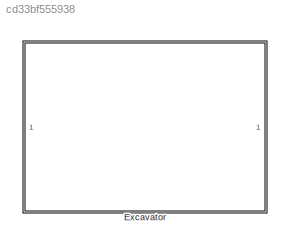
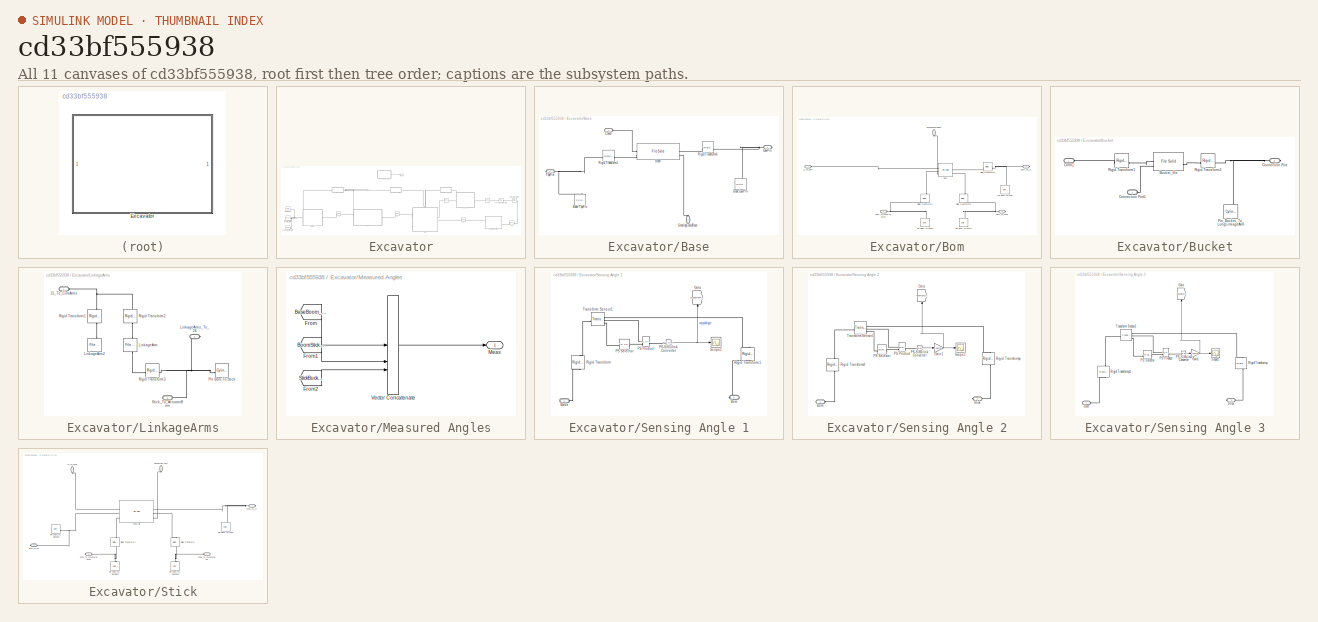
[diagram: thumbnail index - all 11 canvases of the model, root first then tree order]
MODEL slx_cd33bf555938
KIND model
CONFIG AbsTol = auto
CONFIG EnableMultiTasking = off
CONFIG FixedStep = auto
CONFIG MaxStep = auto
CONFIG MinStep = auto
CONFIG RelTol = 1e-3
CONFIG SampleTimeConstraint = Unconstrained
CONFIG SolverName = VariableStepAuto
CONFIG StartTime = 0.0
CONFIG StopTime = 10.0
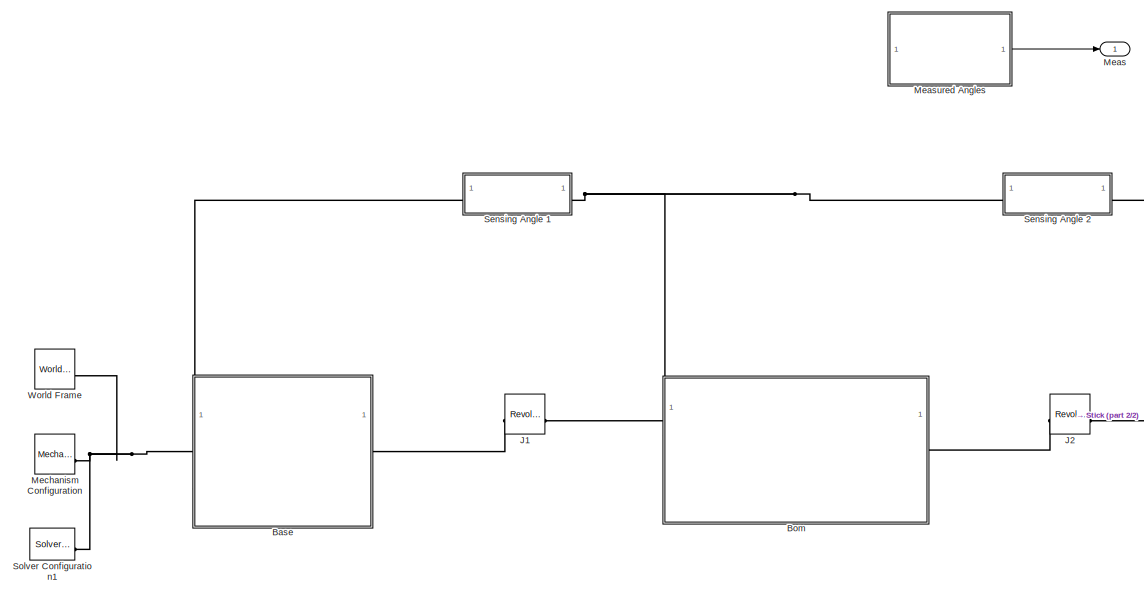
[diagram: Excavator - part 1/2, left side, full height]
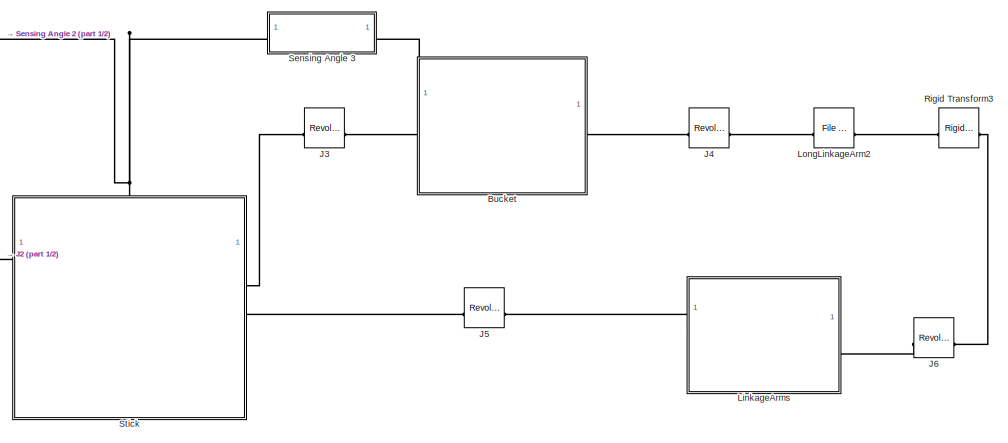
[diagram: Excavator - part 2/2, middle right region]
BLOCK [SubSystem] Excavator
BLOCK [SubSystem] Excavator/Base
  PortSchema = {"entries":[{"content":{"sides":[{"content":{"connectorIds":["LConn1"]},"type":"ConnectorPlacement.EquallySpacedRectSide","uuid":"40ecd481-0f87-4ac6-81e7-411d2e7a87dc"},{"content":{"connectorIds":["RConn1","RConn2"],"side":"RIGHT"},"type":"ConnectorPlacement.EquallySpacedRectSide","uuid":"4ae56660-704d-4a11-a2e7-42dc450a906f"},{"content":{"connectorIds":["LConn2"],"side":"TOP"},"type":"ConnectorPl...<+262ch>
BLOCK [Reference] Excavator/Base/Base  REF=sm_lib/Body Elements/File Solid
  SourceBlock = sm_lib/Body Elements/File Solid
  SourceType = File Solid
BLOCK [Reference] Excavator/Base/Base LowPin  REF=sm_lib/Body Elements/Cylindrical Solid
  NameLocation = left
  SourceBlock = sm_lib/Body Elements/Cylindrical Solid
  SourceType = Cylindrical Solid
BLOCK [Reference] Excavator/Base/Base TopPin  REF=sm_lib/Body Elements/Cylindrical Solid
  NameLocation = left
  SourceBlock = sm_lib/Body Elements/Cylindrical Solid
  SourceType = Cylindrical Solid
BLOCK [PMIOPort] Excavator/Base/Conn1
  Side = Left
BLOCK [PMIOPort] Excavator/Base/LowPin
  NameLocation = top
  Port = 4
  Side = Right
BLOCK [Reference] Excavator/Base/Rigid Transform1  REF=sm_lib/Frames and
Transforms/Rigid
Transform
  SourceBlock = sm_lib/Frames and\nTransforms/Rigid\nTransform
  SourceType = Rigid\nTransform
BLOCK [Reference] Excavator/Base/Rigid Transform6  REF=sm_lib/Frames and
Transforms/Rigid
Transform
  SourceBlock = sm_lib/Frames and\nTransforms/Rigid\nTransform
  SourceType = Rigid\nTransform
BLOCK [PMIOPort] Excavator/Base/SensingCoordBase
  NameLocation = right
  Port = 2
  Side = Left
BLOCK [PMIOPort] Excavator/Base/TopPin
  NameLocation = top
  Port = 3
  Side = Right
BLOCK [SubSystem] Excavator/Bom
  PortSchema = {"entries":[{"content":{"sides":[{"content":{"connectorIds":["LConn1","LConn2"]},"type":"ConnectorPlacement.EquallySpacedRectSide","uuid":"7ad98941-c155-4b77-821c-441aa02f495c"},{"content":{"connectorIds":["RConn1","RConn2"],"side":"RIGHT"},"type":"ConnectorPlacement.EquallySpacedRectSide","uuid":"f5fb3b40-b535-47bd-a749-2c1f436a2cdb"},{"content":{"connectorIds":["LConn3"],"side":"TOP"},"type":"Co...<+271ch>
BLOCK [Reference] Excavator/Bom/Bom  REF=sm_lib/Body Elements/File Solid
  SourceBlock = sm_lib/Body Elements/File Solid
  SourceType = File Solid
BLOCK [PMIOPort] Excavator/Bom/Bom_To_J2
  NameLocation = top
  Port = 4
  Side = Right
BLOCK [PMIOPort] Excavator/Bom/Bom_To_LowerActuator
  Port = 2
  Side = Left
BLOCK [PMIOPort] Excavator/Bom/Bom_To_Stick
  Port = 5
  Side = Right
BLOCK [PMIOPort] Excavator/Bom/J1_To_Bom
  Side = Left
BLOCK [Reference] Excavator/Bom/Pin Bom-To-Stick  REF=sm_lib/Body Elements/Cylindrical Solid
  NameLocation = right
  SourceBlock = sm_lib/Body Elements/Cylindrical Solid
  SourceType = Cylindrical Solid
BLOCK [Reference] Excavator/Bom/Pin Bom-To-Stick1  REF=sm_lib/Body Elements/Cylindrical Solid
  NameLocation = right
  SourceBlock = sm_lib/Body Elements/Cylindrical Solid
  SourceType = Cylindrical Solid
BLOCK [Reference] Excavator/Bom/Pin Bom-To-Stick2  REF=sm_lib/Body Elements/Cylindrical Solid
  NameLocation = right
  SourceBlock = sm_lib/Body Elements/Cylindrical Solid
  SourceType = Cylindrical Solid
BLOCK [Reference] Excavator/Bom/Rigid Transform1  REF=sm_lib/Frames and
Transforms/Rigid
Transform
  SourceBlock = sm_lib/Frames and\nTransforms/Rigid\nTransform
  SourceType = Rigid\nTransform
BLOCK [Reference] Excavator/Bom/Rigid Transform2  REF=sm_lib/Frames and
Transforms/Rigid
Transform
  NameLocation = top
  SourceBlock = sm_lib/Frames and\nTransforms/Rigid\nTransform
  SourceType = Rigid\nTransform
BLOCK [Reference] Excavator/Bom/Rigid Transform3  REF=sm_lib/Frames and
Transforms/Rigid
Transform
  NameLocation = left
  SourceBlock = sm_lib/Frames and\nTransforms/Rigid\nTransform
  SourceType = Rigid\nTransform
BLOCK [PMIOPort] Excavator/Bom/SensingCoordBom
  NameLocation = left
  Port = 3
  Side = Left
BLOCK [SubSystem] Excavator/Bucket
  PortSchema = {"entries":[{"content":{"sides":[{"content":{"connectorIds":["LConn1"]},"type":"ConnectorPlacement.EquallySpacedRectSide","uuid":"5de28302-4101-44f3-9c23-279c450fdd15"},{"content":{"connectorIds":["RConn1"],"side":"RIGHT"},"type":"ConnectorPlacement.EquallySpacedRectSide","uuid":"b0db8830-510e-47ef-9140-b2643c0c8376"},{"content":{"connectorIds":["LConn2"],"side":"TOP"},"type":"ConnectorPlacement.E...<+253ch>
BLOCK [Reference] Excavator/Bucket/Bucket_file  REF=sm_lib/Body Elements/File Solid
  SourceBlock = sm_lib/Body Elements/File Solid
  SourceType = File Solid
BLOCK [PMIOPort] Excavator/Bucket/Conn1
  Side = Left
BLOCK [PMIOPort] Excavator/Bucket/Connection Port
  NameLocation = top
  Port = 3
  Side = Right
BLOCK [PMIOPort] Excavator/Bucket/Connection Port1
  Port = 2
  Side = Left
BLOCK [Reference] Excavator/Bucket/Pin_Bucket_To_LongLinkageArm  REF=sm_lib/Body Elements/Cylindrical Solid
  NameLocation = right
  SourceBlock = sm_lib/Body Elements/Cylindrical Solid
  SourceType = Cylindrical Solid
BLOCK [Reference] Excavator/Bucket/Rigid Transform1  REF=sm_lib/Frames and
Transforms/Rigid
Transform
  SourceBlock = sm_lib/Frames and\nTransforms/Rigid\nTransform
  SourceType = Rigid\nTransform
BLOCK [Reference] Excavator/Bucket/Rigid Transform2  REF=sm_lib/Frames and
Transforms/Rigid
Transform
  SourceBlock = sm_lib/Frames and\nTransforms/Rigid\nTransform
  SourceType = Rigid\nTransform
BLOCK [Reference] Excavator/J1  REF=sm_lib/Joints/Revolute Joint
  SourceBlock = sm_lib/Joints/Revolute Joint
  SourceType = Revolute Joint
BLOCK [Reference] Excavator/J2  REF=sm_lib/Joints/Revolute Joint
  SourceBlock = sm_lib/Joints/Revolute Joint
  SourceType = Revolute Joint
BLOCK [Reference] Excavator/J3  REF=sm_lib/Joints/Revolute Joint
  SourceBlock = sm_lib/Joints/Revolute Joint
  SourceType = Revolute Joint
BLOCK [Reference] Excavator/J4  REF=sm_lib/Joints/Revolute Joint
  SourceBlock = sm_lib/Joints/Revolute Joint
  SourceType = Revolute Joint
BLOCK [Reference] Excavator/J5  REF=sm_lib/Joints/Revolute Joint
  SourceBlock = sm_lib/Joints/Revolute Joint
  SourceType = Revolute Joint
BLOCK [Reference] Excavator/J6  REF=sm_lib/Joints/Revolute Joint
  SourceBlock = sm_lib/Joints/Revolute Joint
  SourceType = Revolute Joint
BLOCK [SubSystem] Excavator/LinkageArms
BLOCK [PMIOPort] Excavator/LinkageArms/J5_To_LinkArms
  Side = Left
BLOCK [Reference] Excavator/LinkageArms/LinkageArm  REF=sm_lib/Body Elements/File Solid
  NameLocation = left
  SourceBlock = sm_lib/Body Elements/File Solid
  SourceType = File Solid
BLOCK [Reference] Excavator/LinkageArms/LinkageArm2  REF=sm_lib/Body Elements/File Solid
  NameLocation = left
  SourceBlock = sm_lib/Body Elements/File Solid
  SourceType = File Solid
BLOCK [PMIOPort] Excavator/LinkageArms/LinkageArms_To_J6
  NameLocation = top
  Port = 2
  Side = Right
BLOCK [Reference] Excavator/LinkageArms/Pin Bom-To-Stick  REF=sm_lib/Body Elements/Cylindrical Solid
  SourceBlock = sm_lib/Body Elements/Cylindrical Solid
  SourceType = Cylindrical Solid
BLOCK [Reference] Excavator/LinkageArms/Rigid Transform1  REF=sm_lib/Frames and
Transforms/Rigid
Transform
  NameLocation = left
  SourceBlock = sm_lib/Frames and\nTransforms/Rigid\nTransform
  SourceType = Rigid\nTransform
BLOCK [Reference] Excavator/LinkageArms/Rigid Transform2  REF=sm_lib/Frames and
Transforms/Rigid
Transform
  NameLocation = left
  SourceBlock = sm_lib/Frames and\nTransforms/Rigid\nTransform
  SourceType = Rigid\nTransform
BLOCK [Reference] Excavator/LinkageArms/Rigid Transform3  REF=sm_lib/Frames and
Transforms/Rigid
Transform
  SourceBlock = sm_lib/Frames and\nTransforms/Rigid\nTransform
  SourceType = Rigid\nTransform
BLOCK [PMIOPort] Excavator/LinkageArms/Stick_To_ActuatorBom
  Port = 3
  Side = Left
BLOCK [Reference] Excavator/LongLinkageArm2  REF=sm_lib/Body Elements/File Solid
  SourceBlock = sm_lib/Body Elements/File Solid
  SourceType = File Solid
BLOCK [Outport] Excavator/Meas
BLOCK [SubSystem] Excavator/Measured Angles
BLOCK [From] Excavator/Measured Angles/From
  GotoTag = BaseBoom_angle
  IconDisplay = Tag and signal name
  TagVisibility = global
BLOCK [From] Excavator/Measured Angles/From1
  GotoTag = BoomStick_angle
  TagVisibility = global
BLOCK [From] Excavator/Measured Angles/From2
  GotoTag = StickBucket_angle
  TagVisibility = global
BLOCK [Outport] Excavator/Measured Angles/Meas
BLOCK [Concatenate] Excavator/Measured Angles/Vector Concatenate
  NumInputs = 3
BLOCK [Reference] Excavator/Mechanism Configuration  REF=sm_lib/Utilities/Mechanism
Configuration
  SourceBlock = sm_lib/Utilities/Mechanism\nConfiguration
  SourceType = Mechanism\nConfiguration
BLOCK [Reference] Excavator/Rigid Transform3  REF=sm_lib/Frames and
Transforms/Rigid
Transform
  SourceBlock = sm_lib/Frames and\nTransforms/Rigid\nTransform
  SourceType = Rigid\nTransform
BLOCK [SubSystem] Excavator/Sensing Angle 1
BLOCK [PMIOPort] Excavator/Sensing Angle 1/Base
  Side = Left
BLOCK [PMIOPort] Excavator/Sensing Angle 1/Bom
  Port = 2
  Side = Right
BLOCK [Goto] Excavator/Sensing Angle 1/Goto
  GotoTag = BaseBoom_angle
  NameLocation = right
  TagVisibility = global
BLOCK [Reference] Excavator/Sensing Angle 1/PS Product  REF=fl_lib/Physical Signals/Functions/PS Product
  SourceBlock = fl_lib/Physical Signals/Functions/PS Product
  SourceType = PS Product
BLOCK [Reference] Excavator/Sensing Angle 1/PS Selector  REF=fl_lib/Physical Signals/Nonlinear Operators/PS Selector
  SourceBlock = fl_lib/Physical Signals/Nonlinear Operators/PS Selector
  SourceType = PS Selector
BLOCK [Reference] Excavator/Sensing Angle 1/PS-Simulink Converter  REF=nesl_utility/PS-Simulink
Converter
  SourceBlock = nesl_utility/PS-Simulink\nConverter
  SourceType = PS-Simulink\nConverter
BLOCK [Reference] Excavator/Sensing Angle 1/Rigid Transform  REF=sm_lib/Frames and
Transforms/Rigid
Transform
  NameLocation = right
  SourceBlock = sm_lib/Frames and\nTransforms/Rigid\nTransform
  SourceType = Rigid\nTransform
BLOCK [Reference] Excavator/Sensing Angle 1/Rigid Transform1  REF=sm_lib/Frames and
Transforms/Rigid
Transform
  NameLocation = right
  SourceBlock = sm_lib/Frames and\nTransforms/Rigid\nTransform
  SourceType = Rigid\nTransform
BLOCK [Scope] Excavator/Sensing Angle 1/Scope1
  Floating = off
  NumInputPorts = 1
  ScopeSpecificationString = Simulink.scopes.TimeScopeBlockCfg('CurrentConfiguration', extmgr.ConfigurationSet(extmgr.Configuration('Core','General UI',true),extmgr.Configuration('Core','Source UI',true),extmgr.Configuration('Sources','WiredSimulink',true,'DataLoggingVariableName','ScopeData1'),extmgr.Configuration('Visuals','Time Domain',true,'SerializedDisplays',{struct('MinYLimReal','15.99751','MaxYLimReal','32.86622','YLa...<+1517ch>
BLOCK [Reference] Excavator/Sensing Angle 1/Transform Sensor1  REF=sm_lib/Frames and
Transforms/Transform
Sensor
  SourceBlock = sm_lib/Frames and\nTransforms/Transform\nSensor
  SourceType = Transform\nSensor
BLOCK [SubSystem] Excavator/Sensing Angle 2
BLOCK [PMIOPort] Excavator/Sensing Angle 2/Bom
  Side = Left
BLOCK [Gain] Excavator/Sensing Angle 2/Gain1
  Gain = -180/pi
BLOCK [Goto] Excavator/Sensing Angle 2/Goto
  GotoTag = BoomStick_angle
  NameLocation = right
  TagVisibility = global
BLOCK [Reference] Excavator/Sensing Angle 2/PS Product  REF=fl_lib/Physical Signals/Functions/PS Product
  SourceBlock = fl_lib/Physical Signals/Functions/PS Product
  SourceType = PS Product
BLOCK [Reference] Excavator/Sensing Angle 2/PS Selector  REF=fl_lib/Physical Signals/Nonlinear Operators/PS Selector
  SourceBlock = fl_lib/Physical Signals/Nonlinear Operators/PS Selector
  SourceType = PS Selector
BLOCK [Reference] Excavator/Sensing Angle 2/PS-Simulink Converter  REF=nesl_utility/PS-Simulink
Converter
  SourceBlock = nesl_utility/PS-Simulink\nConverter
  SourceType = PS-Simulink\nConverter
BLOCK [Reference] Excavator/Sensing Angle 2/Rigid Transform2  REF=sm_lib/Frames and
Transforms/Rigid
Transform
  NameLocation = right
  SourceBlock = sm_lib/Frames and\nTransforms/Rigid\nTransform
  SourceType = Rigid\nTransform
BLOCK [Reference] Excavator/Sensing Angle 2/Rigid Transformp  REF=sm_lib/Frames and
Transforms/Rigid
Transform
  NameLocation = right
  SourceBlock = sm_lib/Frames and\nTransforms/Rigid\nTransform
  SourceType = Rigid\nTransform
BLOCK [Scope] Excavator/Sensing Angle 2/Scope1
  Floating = off
  NumInputPorts = 1
  ScopeSpecificationString = Simulink.scopes.TimeScopeBlockCfg('CurrentConfiguration', extmgr.ConfigurationSet(extmgr.Configuration('Core','General UI',true),extmgr.Configuration('Core','Source UI',true),extmgr.Configuration('Sources','WiredSimulink',true,'DataLoggingVariableName','ScopeData1'),extmgr.Configuration('Visuals','Time Domain',true,'SerializedDisplays',{struct('MinYLimReal','123.14080020700693','MaxYLimReal','123....<+1572ch>
BLOCK [PMIOPort] Excavator/Sensing Angle 2/Stick
  Port = 2
  Side = Right
BLOCK [Reference] Excavator/Sensing Angle 2/Transform Sensor1  REF=sm_lib/Frames and
Transforms/Transform
Sensor
  SourceBlock = sm_lib/Frames and\nTransforms/Transform\nSensor
  SourceType = Transform\nSensor
BLOCK [SubSystem] Excavator/Sensing Angle 3
BLOCK [PMIOPort] Excavator/Sensing Angle 3/Bom
  Side = Left
BLOCK [Gain] Excavator/Sensing Angle 3/Gain1
  Gain = -180/pi
BLOCK [Goto] Excavator/Sensing Angle 3/Goto
  GotoTag = StickBucket_angle
  NameLocation = right
  TagVisibility = global
BLOCK [Reference] Excavator/Sensing Angle 3/PS Product  REF=fl_lib/Physical Signals/Functions/PS Product
  SourceBlock = fl_lib/Physical Signals/Functions/PS Product
  SourceType = PS Product
BLOCK [Reference] Excavator/Sensing Angle 3/PS Selector  REF=fl_lib/Physical Signals/Nonlinear Operators/PS Selector
  SourceBlock = fl_lib/Physical Signals/Nonlinear Operators/PS Selector
  SourceType = PS Selector
BLOCK [Reference] Excavator/Sensing Angle 3/PS-Simulink Converter  REF=nesl_utility/PS-Simulink
Converter
  SourceBlock = nesl_utility/PS-Simulink\nConverter
  SourceType = PS-Simulink\nConverter
BLOCK [Reference] Excavator/Sensing Angle 3/Rigid Transformp  REF=sm_lib/Frames and
Transforms/Rigid
Transform
  NameLocation = right
  SourceBlock = sm_lib/Frames and\nTransforms/Rigid\nTransform
  SourceType = Rigid\nTransform
BLOCK [Reference] Excavator/Sensing Angle 3/Rigid Transformp1  REF=sm_lib/Frames and
Transforms/Rigid
Transform
  NameLocation = right
  SourceBlock = sm_lib/Frames and\nTransforms/Rigid\nTransform
  SourceType = Rigid\nTransform
BLOCK [Scope] Excavator/Sensing Angle 3/Scope1
  Floating = off
  NumInputPorts = 1
  ScopeSpecificationString = Simulink.scopes.TimeScopeBlockCfg('CurrentConfiguration', extmgr.ConfigurationSet(extmgr.Configuration('Core','General UI',true),extmgr.Configuration('Core','Source UI',true),extmgr.Configuration('Sources','WiredSimulink',true,'DataLoggingVariableName','ScopeData1'),extmgr.Configuration('Visuals','Time Domain',true,'SerializedDisplays',{struct('MinYLimReal','126.401347015','MaxYLimReal','126.40134...<+1532ch>
BLOCK [PMIOPort] Excavator/Sensing Angle 3/Stick
  Port = 2
  Side = Right
BLOCK [Reference] Excavator/Sensing Angle 3/Transform Sensor1  REF=sm_lib/Frames and
Transforms/Transform
Sensor
  SourceBlock = sm_lib/Frames and\nTransforms/Transform\nSensor
  SourceType = Transform\nSensor
BLOCK [Reference] Excavator/Solver Configuration1  REF=nesl_utility/Solver
Configuration
  SourceBlock = nesl_utility/Solver\nConfiguration
  SourceType = Solver\nConfiguration
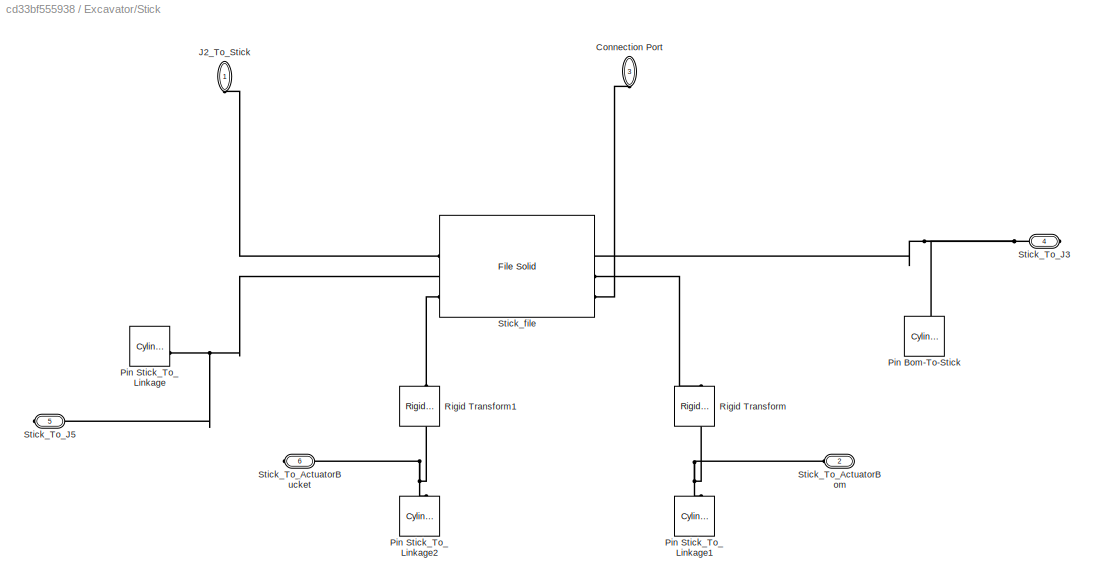
BLOCK [SubSystem] Excavator/Stick
  PortSchema = {"entries":[{"content":{"sides":[{"content":{"connectorIds":["LConn1","LConn2"]},"type":"ConnectorPlacement.EquallySpacedRectSide","uuid":"35d28eba-fa4f-4cd3-971b-9e32fe878e3c"},{"content":{"connectorIds":["RConn1","RConn2","RConn3"],"side":"RIGHT"},"type":"ConnectorPlacement.EquallySpacedRectSide","uuid":"fcb94bdd-c4dd-4816-bcf0-4e4658b36d25"},{"content":{"connectorIds":["LConn3"],"side":"TOP"},"...<+280ch>
BLOCK [PMIOPort] Excavator/Stick/Connection Port
  NameLocation = left
  Port = 3
  Side = Left
BLOCK [PMIOPort] Excavator/Stick/J2_To_Stick
  NameLocation = left
  Side = Left
BLOCK [Reference] Excavator/Stick/Pin Bom-To-Stick  REF=sm_lib/Body Elements/Cylindrical Solid
  NameLocation = right
  SourceBlock = sm_lib/Body Elements/Cylindrical Solid
  SourceType = Cylindrical Solid
BLOCK [Reference] Excavator/Stick/Pin Stick_To_Linkage  REF=sm_lib/Body Elements/Cylindrical Solid
  NameLocation = top
  SourceBlock = sm_lib/Body Elements/Cylindrical Solid
  SourceType = Cylindrical Solid
BLOCK [Reference] Excavator/Stick/Pin Stick_To_Linkage1  REF=sm_lib/Body Elements/Cylindrical Solid
  NameLocation = left
  SourceBlock = sm_lib/Body Elements/Cylindrical Solid
  SourceType = Cylindrical Solid
BLOCK [Reference] Excavator/Stick/Pin Stick_To_Linkage2  REF=sm_lib/Body Elements/Cylindrical Solid
  NameLocation = left
  SourceBlock = sm_lib/Body Elements/Cylindrical Solid
  SourceType = Cylindrical Solid
BLOCK [Reference] Excavator/Stick/Rigid Transform  REF=sm_lib/Frames and
Transforms/Rigid
Transform
  NameLocation = left
  SourceBlock = sm_lib/Frames and\nTransforms/Rigid\nTransform
  SourceType = Rigid\nTransform
BLOCK [Reference] Excavator/Stick/Rigid Transform1  REF=sm_lib/Frames and
Transforms/Rigid
Transform
  NameLocation = left
  SourceBlock = sm_lib/Frames and\nTransforms/Rigid\nTransform
  SourceType = Rigid\nTransform
BLOCK [PMIOPort] Excavator/Stick/Stick_To_ActuatorBom
  Port = 2
  Side = Left
BLOCK [PMIOPort] Excavator/Stick/Stick_To_ActuatorBucket
  Port = 6
  Side = Right
BLOCK [PMIOPort] Excavator/Stick/Stick_To_J3
  Port = 4
  Side = Right
BLOCK [PMIOPort] Excavator/Stick/Stick_To_J5
  Port = 5
  Side = Right
BLOCK [Reference] Excavator/Stick/Stick_file  REF=sm_lib/Body Elements/File Solid
  SourceBlock = sm_lib/Body Elements/File Solid
  SourceType = File Solid
BLOCK [Reference] Excavator/World Frame  REF=sm_lib/Frames and
Transforms/World Frame
  SourceBlock = sm_lib/Frames and\nTransforms/World Frame
  SourceType = World Frame
LINE Excavator/Measured Angles/From1:1 -> Excavator/Measured Angles/Vector Concatenate:2
LINE Excavator/Measured Angles/From2:1 -> Excavator/Measured Angles/Vector Concatenate:3
LINE Excavator/Measured Angles/From:1 -> Excavator/Measured Angles/Vector Concatenate:1
LINE Excavator/Measured Angles/Vector Concatenate:1 -> Excavator/Measured Angles/Meas:1
LINE Excavator/Measured Angles:1 -> Excavator/Meas:1
NET Excavator/Sensing Angle 1/PS-Simulink Converter:1 -> Excavator/Sensing Angle 1/Goto:1, Excavator/Sensing Angle 1/Scope1:1
NET Excavator/Sensing Angle 2/Gain1:1 -> Excavator/Sensing Angle 2/Goto:1, Excavator/Sensing Angle 2/Scope1:1
LINE Excavator/Sensing Angle 2/PS-Simulink Converter:1 -> Excavator/Sensing Angle 2/Gain1:1
NET Excavator/Sensing Angle 3/Gain1:1 -> Excavator/Sensing Angle 3/Goto:1, Excavator/Sensing Angle 3/Scope1:1
LINE Excavator/Sensing Angle 3/PS-Simulink Converter:1 -> Excavator/Sensing Angle 3/Gain1:1
PNET net1: Excavator/Base/Base LowPin:RConn1 -- Excavator/Base/LowPin:RConn1 -- Excavator/Base/Rigid Transform6:RConn1
PNET net2: Excavator/Base/Base TopPin:RConn1 -- Excavator/Base/Rigid Transform1:RConn1 -- Excavator/Base/TopPin:RConn1
PLINE Excavator/Base/Base:LConn1 -- Excavator/Base/Conn1:RConn1
PLINE Excavator/Base/Base:LConn2 -- Excavator/Base/Rigid Transform1:LConn1
PLINE Excavator/Base/Base:RConn1 -- Excavator/Base/Rigid Transform6:LConn1
PLINE Excavator/Base/Base:RConn2 -- Excavator/Base/SensingCoordBase:RConn1
PNET net3: Excavator/Base:LConn1 -- Excavator/Mechanism Configuration:RConn1 -- Excavator/Solver Configuration1:RConn1 -- Excavator/World Frame:RConn1
PLINE Excavator/Base:LConn2 -- Excavator/Sensing Angle 1:LConn1
PLINE Excavator/Base:RConn1 -- Excavator/J1:LConn1
PLINE Excavator/Bom/Bom:LConn1 -- Excavator/Bom/J1_To_Bom:RConn1
PLINE Excavator/Bom/Bom:LConn2 -- Excavator/Bom/Rigid Transform3:LConn1
PLINE Excavator/Bom/Bom:LConn3 -- Excavator/Bom/SensingCoordBom:RConn1
PLINE Excavator/Bom/Bom:RConn1 -- Excavator/Bom/Rigid Transform1:LConn1
PLINE Excavator/Bom/Bom:RConn2 -- Excavator/Bom/Rigid Transform2:LConn1
PNET net4: Excavator/Bom/Bom_To_J2:RConn1 -- Excavator/Bom/Pin Bom-To-Stick:RConn1 -- Excavator/Bom/Rigid Transform1:RConn1
PNET net5: Excavator/Bom/Bom_To_LowerActuator:RConn1 -- Excavator/Bom/Pin Bom-To-Stick2:RConn1 -- Excavator/Bom/Rigid Transform3:RConn1
PNET net6: Excavator/Bom/Bom_To_Stick:RConn1 -- Excavator/Bom/Pin Bom-To-Stick1:RConn1 -- Excavator/Bom/Rigid Transform2:RConn1
PLINE Excavator/Bom:LConn1 -- Excavator/J1:RConn1
PNET net7: Excavator/Bom:LConn3 -- Excavator/Sensing Angle 1:RConn1 -- Excavator/Sensing Angle 2:LConn1
PLINE Excavator/Bom:RConn1 -- Excavator/J2:LConn1
PLINE Excavator/Bucket/Bucket_file:LConn1 -- Excavator/Bucket/Rigid Transform1:RConn1
PLINE Excavator/Bucket/Bucket_file:LConn2 -- Excavator/Bucket/Connection Port1:RConn1
PLINE Excavator/Bucket/Bucket_file:RConn1 -- Excavator/Bucket/Rigid Transform2:LConn1
PLINE Excavator/Bucket/Conn1:RConn1 -- Excavator/Bucket/Rigid Transform1:LConn1
PNET net8: Excavator/Bucket/Connection Port:RConn1 -- Excavator/Bucket/Pin_Bucket_To_LongLinkageArm:RConn1 -- Excavator/Bucket/Rigid Transform2:RConn1
PLINE Excavator/Bucket:LConn1 -- Excavator/J3:RConn1
PLINE Excavator/Bucket:LConn2 -- Excavator/Sensing Angle 3:RConn1
PLINE Excavator/Bucket:RConn1 -- Excavator/J4:LConn1
PLINE Excavator/J2:RConn1 -- Excavator/Stick:LConn1
PLINE Excavator/J3:LConn1 -- Excavator/Stick:RConn1
PLINE Excavator/J4:RConn1 -- Excavator/LongLinkageArm2:LConn1
PLINE Excavator/J5:LConn1 -- Excavator/Stick:RConn2
PLINE Excavator/J5:RConn1 -- Excavator/LinkageArms:LConn1
PLINE Excavator/J6:LConn1 -- Excavator/LinkageArms:RConn1
PLINE Excavator/J6:RConn1 -- Excavator/Rigid Transform3:RConn1
PNET net9: Excavator/LinkageArms/J5_To_LinkArms:RConn1 -- Excavator/LinkageArms/Rigid Transform1:LConn1 -- Excavator/LinkageArms/Rigid Transform2:LConn1
PLINE Excavator/LinkageArms/LinkageArm2:LConn1 -- Excavator/LinkageArms/Rigid Transform1:RConn1
PLINE Excavator/LinkageArms/LinkageArm:LConn1 -- Excavator/LinkageArms/Rigid Transform2:RConn1
PLINE Excavator/LinkageArms/LinkageArm:RConn1 -- Excavator/LinkageArms/Rigid Transform3:LConn1
PNET net10: Excavator/LinkageArms/LinkageArms_To_J6:RConn1 -- Excavator/LinkageArms/Pin Bom-To-Stick:RConn1 -- Excavator/LinkageArms/Rigid Transform3:RConn1 -- Excavator/LinkageArms/Stick_To_ActuatorBom:RConn1
PLINE Excavator/LongLinkageArm2:RConn1 -- Excavator/Rigid Transform3:LConn1
PLINE Excavator/Sensing Angle 1/Base:RConn1 -- Excavator/Sensing Angle 1/Rigid Transform:LConn1
PLINE Excavator/Sensing Angle 1/Bom:RConn1 -- Excavator/Sensing Angle 1/Rigid Transform1:LConn1
PLINE Excavator/Sensing Angle 1/PS Product:LConn1 -- Excavator/Sensing Angle 1/Transform Sensor1:RConn2
PLINE Excavator/Sensing Angle 1/PS Product:LConn2 -- Excavator/Sensing Angle 1/PS Selector:RConn1
PLINE Excavator/Sensing Angle 1/PS Product:RConn1 -- Excavator/Sensing Angle 1/PS-Simulink Converter:LConn1
PLINE Excavator/Sensing Angle 1/PS Selector:LConn1 -- Excavator/Sensing Angle 1/Transform Sensor1:RConn3
PLINE Excavator/Sensing Angle 1/Rigid Transform1:RConn1 -- Excavator/Sensing Angle 1/Transform Sensor1:RConn1
PLINE Excavator/Sensing Angle 1/Rigid Transform:RConn1 -- Excavator/Sensing Angle 1/Transform Sensor1:LConn1
PLINE Excavator/Sensing Angle 2/Bom:RConn1 -- Excavator/Sensing Angle 2/Rigid Transform2:LConn1
PLINE Excavator/Sensing Angle 2/PS Product:LConn1 -- Excavator/Sensing Angle 2/Transform Sensor1:RConn2
PLINE Excavator/Sensing Angle 2/PS Product:LConn2 -- Excavator/Sensing Angle 2/PS Selector:RConn1
PLINE Excavator/Sensing Angle 2/PS Product:RConn1 -- Excavator/Sensing Angle 2/PS-Simulink Converter:LConn1
PLINE Excavator/Sensing Angle 2/PS Selector:LConn1 -- Excavator/Sensing Angle 2/Transform Sensor1:RConn3
PLINE Excavator/Sensing Angle 2/Rigid Transform2:RConn1 -- Excavator/Sensing Angle 2/Transform Sensor1:LConn1
PLINE Excavator/Sensing Angle 2/Rigid Transformp:LConn1 -- Excavator/Sensing Angle 2/Stick:RConn1
PLINE Excavator/Sensing Angle 2/Rigid Transformp:RConn1 -- Excavator/Sensing Angle 2/Transform Sensor1:RConn1
PNET net11: Excavator/Sensing Angle 2:RConn1 -- Excavator/Sensing Angle 3:LConn1 -- Excavator/Stick:LConn3
PLINE Excavator/Sensing Angle 3/Bom:RConn1 -- Excavator/Sensing Angle 3/Rigid Transformp1:LConn1
PLINE Excavator/Sensing Angle 3/PS Product:LConn1 -- Excavator/Sensing Angle 3/Transform Sensor1:RConn2
PLINE Excavator/Sensing Angle 3/PS Product:LConn2 -- Excavator/Sensing Angle 3/PS Selector:RConn1
PLINE Excavator/Sensing Angle 3/PS Product:RConn1 -- Excavator/Sensing Angle 3/PS-Simulink Converter:LConn1
PLINE Excavator/Sensing Angle 3/PS Selector:LConn1 -- Excavator/Sensing Angle 3/Transform Sensor1:RConn3
PLINE Excavator/Sensing Angle 3/Rigid Transformp1:RConn1 -- Excavator/Sensing Angle 3/Transform Sensor1:LConn1
PLINE Excavator/Sensing Angle 3/Rigid Transformp:LConn1 -- Excavator/Sensing Angle 3/Stick:RConn1
PLINE Excavator/Sensing Angle 3/Rigid Transformp:RConn1 -- Excavator/Sensing Angle 3/Transform Sensor1:RConn1
PLINE Excavator/Stick/Connection Port:RConn1 -- Excavator/Stick/Stick_file:RConn3
PLINE Excavator/Stick/J2_To_Stick:RConn1 -- Excavator/Stick/Stick_file:LConn1
PNET net12: Excavator/Stick/Pin Bom-To-Stick:RConn1 -- Excavator/Stick/Stick_To_J3:RConn1 -- Excavator/Stick/Stick_file:RConn1
PNET net13: Excavator/Stick/Pin Stick_To_Linkage1:RConn1 -- Excavator/Stick/Rigid Transform:RConn1 -- Excavator/Stick/Stick_To_ActuatorBom:RConn1
PNET net14: Excavator/Stick/Pin Stick_To_Linkage2:RConn1 -- Excavator/Stick/Rigid Transform1:RConn1 -- Excavator/Stick/Stick_To_ActuatorBucket:RConn1
PNET net15: Excavator/Stick/Pin Stick_To_Linkage:RConn1 -- Excavator/Stick/Stick_To_J5:RConn1 -- Excavator/Stick/Stick_file:LConn2
PLINE Excavator/Stick/Rigid Transform1:LConn1 -- Excavator/Stick/Stick_file:LConn3
PLINE Excavator/Stick/Rigid Transform:LConn1 -- Excavator/Stick/Stick_file:RConn2
note: NET lines group one-source signal fan-out (src -> all destinations, sorted); 1:1 wires keep LINE; PNET lines group multi-terminal physical nets as a canonical sorted terminal list (undirected conserving connections); 2-terminal nets keep the pairwise PLINE form
